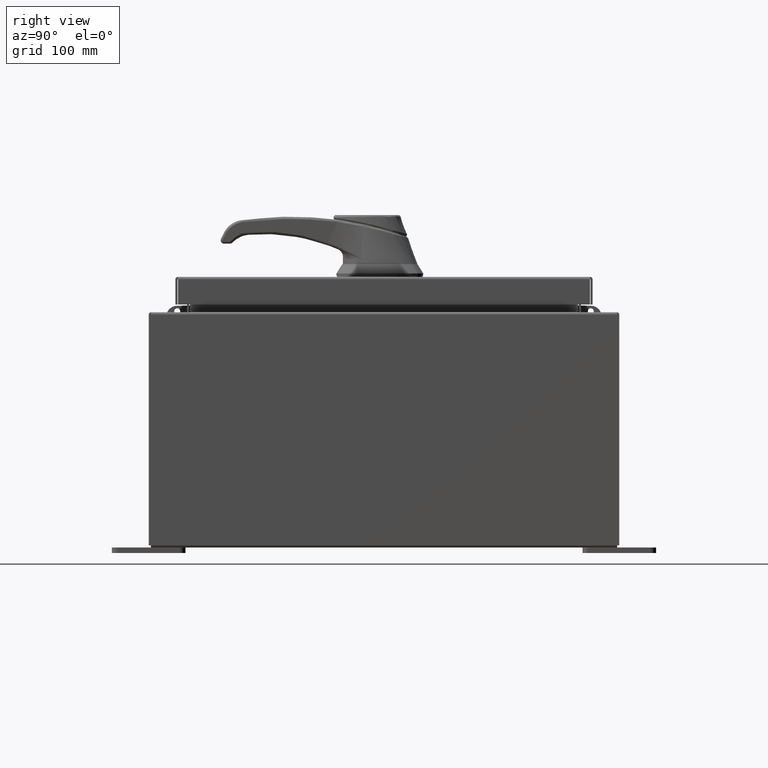
[diagram: clean part render]
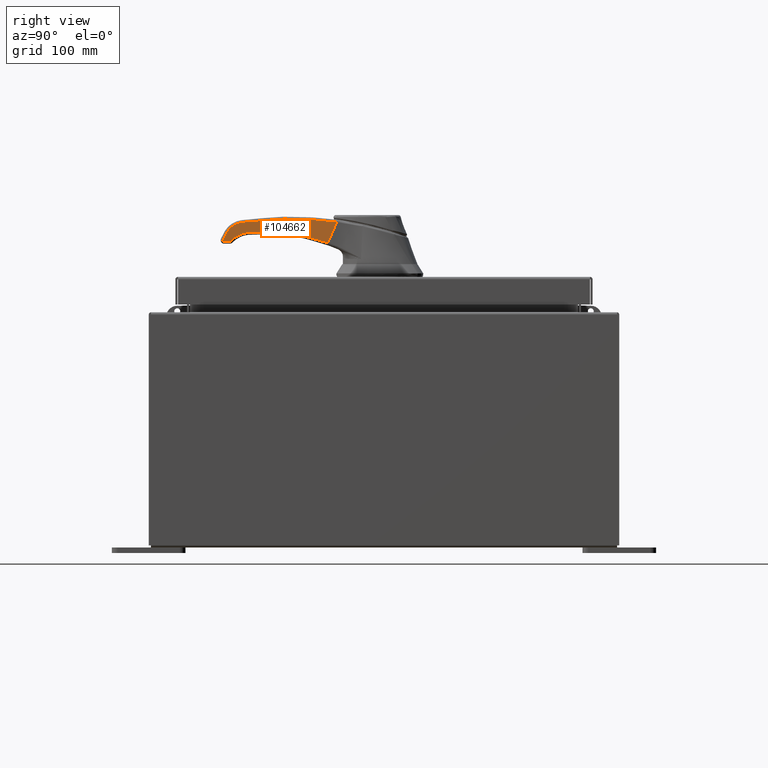
[diagram: same view with one face highlighted and labeled with its STEP entity id]
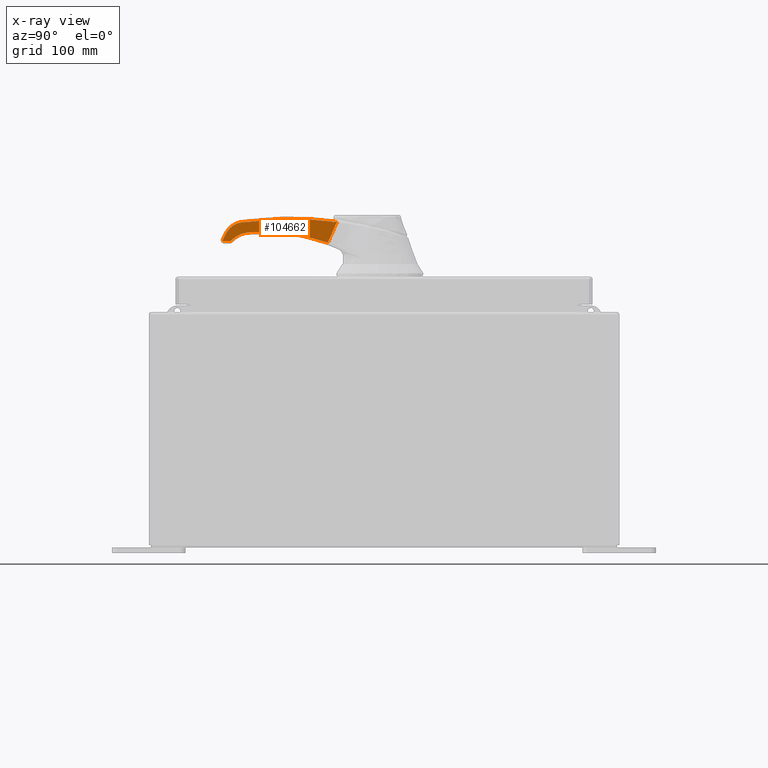
[diagram: x-ray of the same camera — body ghosted, the highlighted face saturated]
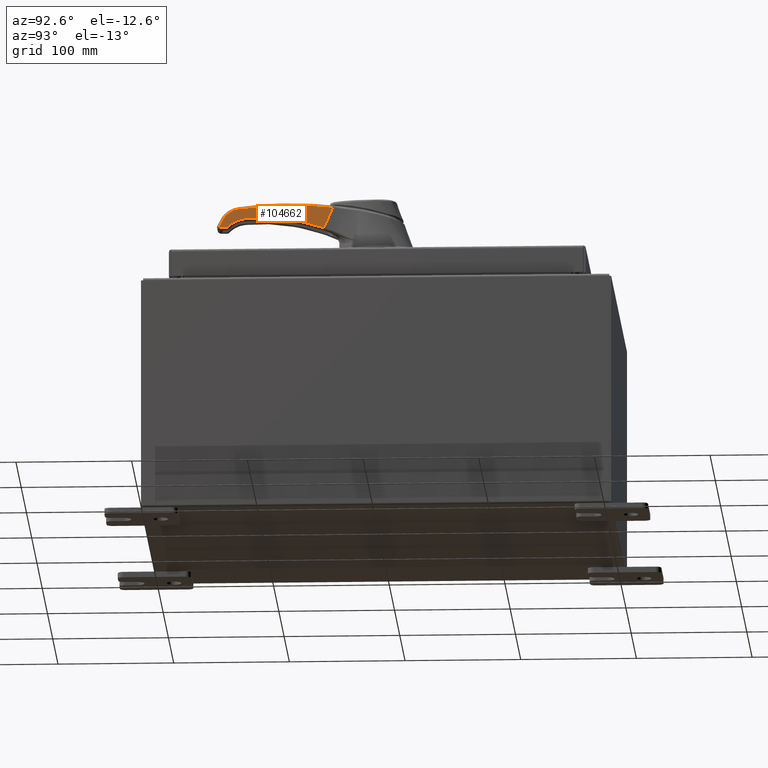
[diagram: same view with one face highlighted and labeled with its STEP entity id]
A machine part, right view. The second image highlights one B-rep face of the part: STEP entity #104662.
The next image is the same camera in x-ray: the body ghosted, the highlighted face saturated — about 0% of this face is hidden behind the body in this view.
A second angle (auxiliary view) of the same face is appended — the face is thin or edge-on in the first view.
In plain terms, the highlighted planar face has unit normal (-0.9997, 0.0262, 0).
Its self-contained STEP definition (entity closure, byte-faithful):
#530 = CARTESIAN_POINT ( 'NONE',  ( 4.260912669914371300, 0.3477165561024668800, 1.822155934299293700 ) ) ;
#1401 = CARTESIAN_POINT ( 'NONE',  ( 5.238341333922705600, 0.3221216857672756800, 1.504789192969850500 ) ) ;
#1747 = CARTESIAN_POINT ( 'NONE',  ( 1.709857820584053600, 0.4145182783057060900, 1.436171112129818800 ) ) ;
#2039 = CARTESIAN_POINT ( 'NONE',  ( 2.297279569877136200, 0.3991360984506870900, 1.209813579828441500 ) ) ;
#2108 = CARTESIAN_POINT ( 'NONE',  ( 1.562662322280712800, 0.4183727280796142900, 1.754100271247676300 ) ) ;
#5132 = CARTESIAN_POINT ( 'NONE',  ( 4.899618863864527700, 0.3309914458019374600, 1.314808457310636900 ) ) ;
#5502 = CARTESIAN_POINT ( 'NONE',  ( 5.188159560683404300, 0.3234357417455224800, 1.103479018449303500 ) ) ;
#8046 = CARTESIAN_POINT ( 'NONE',  ( 5.415589483345930200, 0.3174802796281969200, 1.107331244552982200 ) ) ;
#9629 = CARTESIAN_POINT ( 'NONE',  ( 5.166214422408489600, 0.3240103954152144800, 1.578167351356164700 ) ) ;
#10002 = CARTESIAN_POINT ( 'NONE',  ( 1.667824470721047000, 0.4156189603085088700, 1.530038901860349100 ) ) ;
#10131 = B_SPLINE_CURVE_WITH_KNOTS ( 'NONE', 3,
 ( #91098, #33948, #1401, #58627, #9629, #66845, #17882, #75026, #26103, #83257, #34309, #91453, #42534 ),
 .UNSPECIFIED., .F., .F.,
 ( 4, 3, 3, 3, 4 ),
 ( 0.0000000000000000000, 0.2500000000000000600, 0.4999999999999999400, 0.7500000000000001100, 1.000000000000000000 ),
 .UNSPECIFIED. ) ;
#11369 = ORIENTED_EDGE ( 'NONE', *, *, #81329, .F. ) ;
#11392 = CARTESIAN_POINT ( 'NONE',  ( 5.198911570732901700, 0.3231541904536550700, 1.102362204724409300 ) ) ;
#12539 = CARTESIAN_POINT ( 'NONE',  ( 5.435132043173849700, 0.3169685396892818500, 1.141732283464568000 ) ) ;
#12617 = CARTESIAN_POINT ( 'NONE',  ( 5.395761964433690500, 0.3179994814833435000, 1.102362204724409300 ) ) ;
#13334 = CARTESIAN_POINT ( 'NONE',  ( 4.998712605902774400, 0.3283965848449282300, 1.260755330484069100 ) ) ;
#13728 = CARTESIAN_POINT ( 'NONE',  ( 5.198911570732901700, 0.3231541904536550700, 1.102362204724409300 ) ) ;
#16299 = CARTESIAN_POINT ( 'NONE',  ( 5.423600814086704200, 0.3172704955497537800, 1.113893433811554700 ) ) ;
#17243 = CARTESIAN_POINT ( 'NONE',  ( 5.435132043173849700, 0.3169685396892818500, 1.146767822269909800 ) ) ;
#17364 = VERTEX_POINT ( 'NONE', #70582 ) ;
#17882 = CARTESIAN_POINT ( 'NONE',  ( 5.083002450597204500, 0.3261893775826813500, 1.638942742081526300 ) ) ;
#18246 = CARTESIAN_POINT ( 'NONE',  ( 1.650061589649088200, 0.4160840977191018200, 1.568781778993351800 ) ) ;
#18523 = CARTESIAN_POINT ( 'NONE',  ( 3.201373024673465300, 0.3754615781521820100, 1.376662373716617900 ) ) ;
#21174 = CARTESIAN_POINT ( 'NONE',  ( 0.01201875559651574900, 0.4589777588985599100, 0.0000000000000000000 ) ) ;
#21273 = CARTESIAN_POINT ( 'NONE',  ( 5.297676707349643800, 0.3205679343324399100, 1.420544348434245500 ) ) ;
#21610 = CARTESIAN_POINT ( 'NONE',  ( 5.089391488390961400, 0.3260220747401119100, 1.193731973241700200 ) ) ;
#24524 = CARTESIAN_POINT ( 'NONE',  ( 5.430163003345275500, 0.3170986585765062600, 1.121904764552327900 ) ) ;
#25231 = CARTESIAN_POINT ( 'NONE',  ( 3.720358019906724800, 0.3618714777714219800, 1.860878920996956500 ) ) ;
#25592 = B_SPLINE_CURVE_WITH_KNOTS ( 'NONE', 3,
 ( #70204, #102713, #53823, #21273 ),
 .UNSPECIFIED., .F., .F.,
 ( 4, 4 ),
 ( 0.0000000000000000000, 1.000000000000000000 ),
 .UNSPECIFIED. ) ;
#26103 = CARTESIAN_POINT ( 'NONE',  ( 4.993661853746122100, 0.3285288434447679600, 1.690286077820788000 ) ) ;
#26106 = CARTESIAN_POINT ( 'NONE',  ( 1.765521914500037600, 0.4130606627082026900, 1.306413550672592500 ) ) ;
#26454 = CARTESIAN_POINT ( 'NONE',  ( 1.645561960060808200, 0.4162019246665907800, 1.578529911083217800 ) ) ;
#26757 = CARTESIAN_POINT ( 'NONE',  ( 4.118201828877361400, 0.3514535709929325600, 1.444841834036825000 ) ) ;
#28260 = EDGE_CURVE ( 'NONE', #81547, #32939, #74810, .T. ) ;
#28843 = B_SPLINE_CURVE_WITH_KNOTS ( 'NONE', 3,
 ( #57765, #530, #25231, #82390, #33442, #90587, #41663 ),
 .UNSPECIFIED., .F., .F.,
 ( 4, 3, 4 ),
 ( 0.0000000000000000000, 0.5000000000000000000, 1.000000000000000000 ),
 .UNSPECIFIED. ) ;
#29816 = CARTESIAN_POINT ( 'NONE',  ( 5.170139892717847000, 0.3239076033575709600, 1.114858622675531500 ) ) ;
#29847 = CARTESIAN_POINT ( 'NONE',  ( 5.173810360600048100, 0.3238114887734851500, 1.110928919130475400 ) ) ;
#31617 = EDGE_CURVE ( 'NONE', #56411, #103130, #95825, .T. ) ;
#32713 = CARTESIAN_POINT ( 'NONE',  ( 5.434107345404883400, 0.3169953723446915500, 1.131427248647273200 ) ) ;
#32743 = EDGE_CURVE ( 'NONE', #32939, #45744, #61048, .T. ) ;
#32939 = VERTEX_POINT ( 'NONE', #61176 ) ;
#33442 = CARTESIAN_POINT ( 'NONE',  ( 2.639063204809394500, 0.3901861789927224000, 1.863463497511194300 ) ) ;
#33672 = CARTESIAN_POINT ( 'NONE',  ( 5.434154275272665500, 0.3169941434428555900, 1.151801554516132400 ) ) ;
#33948 = CARTESIAN_POINT ( 'NONE',  ( 5.270392524408691800, 0.3212823958070100700, 1.464158964498488700 ) ) ;
#34309 = CARTESIAN_POINT ( 'NONE',  ( 4.897309076118954600, 0.3310519297226854900, 1.726380228818923600 ) ) ;
#34312 = CARTESIAN_POINT ( 'NONE',  ( 1.733059943124017900, 0.4139107093446360900, 1.382706793541607100 ) ) ;
#34668 = CARTESIAN_POINT ( 'NONE',  ( 1.644487136552200700, 0.4162300699106880600, 1.580854585195165000 ) ) ;
#37313 = CARTESIAN_POINT ( 'NONE',  ( 4.631623080003707000, 0.3380091623789882000, 1.399778788881901500 ) ) ;
#37653 = ORIENTED_EDGE ( 'NONE', *, *, #85799, .F. ) ;
#38888 = CARTESIAN_POINT ( 'NONE',  ( 1.562662322280712800, 0.4183727280796142900, 1.754100271247676300 ) ) ;
#40428 = EDGE_CURVE ( 'NONE', #101172, #70335, #25592, .T. ) ;
#40595 = CARTESIAN_POINT ( 'NONE',  ( 5.395761964433690500, 0.3179994814833435000, 1.102362204724409300 ) ) ;
#40959 = CARTESIAN_POINT ( 'NONE',  ( 5.435132043173849700, 0.3169685396892818500, 1.141732283464568000 ) ) ;
#41238 = EDGE_CURVE ( 'NONE', #17364, #101948, #28843, .T. ) ;
#41663 = CARTESIAN_POINT ( 'NONE',  ( 1.562662322280712800, 0.4183727280796142900, 1.754100271247676300 ) ) ;
#42534 = CARTESIAN_POINT ( 'NONE',  ( 4.796223764405047200, 0.3336989417670212500, 1.746371229950547800 ) ) ;
#42538 = CARTESIAN_POINT ( 'NONE',  ( 1.725237457675101100, 0.4141155483350774100, 1.400794937004702100 ) ) ;
#42716 = EDGE_LOOP ( 'NONE', ( #86924, #95958, #86537, #37653, #49623, #11369, #46952, #102469, #44954, #73498 ) ) ;
#42885 = CARTESIAN_POINT ( 'NONE',  ( 1.644138283611094300, 0.4162392049464427900, 1.581608801553303900 ) ) ;
#44552 = EDGE_CURVE ( 'NONE', #53037, #81547, #60912, .T. ) ;
#44737 = CARTESIAN_POINT ( 'NONE',  ( 4.575459058248953600, 0.3394798690476684100, 1.404708311847427900 ) ) ;
#44954 = ORIENTED_EDGE ( 'NONE', *, *, #32743, .F. ) ;
#45744 = VERTEX_POINT ( 'NONE', #11392 ) ;
#45843 = PLANE ( 'NONE',  #69852 ) ;
#45901 = CARTESIAN_POINT ( 'NONE',  ( 4.741663103481488200, 0.3351276629547292300, 1.374629167336418200 ) ) ;
#46952 = ORIENTED_EDGE ( 'NONE', *, *, #31617, .F. ) ;
#47642 = CARTESIAN_POINT ( 'NONE',  ( 5.297676707349643800, 0.3205679343324399100, 1.420544348434245500 ) ) ;
#49623 = ORIENTED_EDGE ( 'NONE', *, *, #40428, .F. ) ;
#50398 = CARTESIAN_POINT ( 'NONE',  ( 1.865198265729528700, 0.4104505455926048500, 1.054892244880485200 ) ) ;
#50750 = CARTESIAN_POINT ( 'NONE',  ( 1.722863867013035600, 0.4141777029939918100, 1.406262940646887400 ) ) ;
#51123 = CARTESIAN_POINT ( 'NONE',  ( 1.596077613542665100, 0.4174977178834168900, 1.684288201835002900 ) ) ;
#51685 = CARTESIAN_POINT ( 'NONE',  ( 0.01201875559651574900, 0.4589777588985544100, 1.102362204724409300 ) ) ;
#52701 = LINE ( 'NONE', #51685, #74407 ) ;
#53037 = VERTEX_POINT ( 'NONE', #72312 ) ;
#53783 = CARTESIAN_POINT ( 'NONE',  ( 4.687333780091353000, 0.3365503263559293500, 1.389696421774641700 ) ) ;
#53823 = CARTESIAN_POINT ( 'NONE',  ( 5.350141432284226000, 0.3191940971601549500, 1.336677851867712900 ) ) ;
#54066 = DIRECTION ( 'NONE',  ( 0.9996573249755573700, -0.02617694830786630700, 2.958228394578794300E-031 ) ) ;
#54125 = CARTESIAN_POINT ( 'NONE',  ( 4.848938346337686100, 0.3323185618589824500, 1.339510333343593800 ) ) ;
#54510 = CARTESIAN_POINT ( 'NONE',  ( 5.183227423342853700, 0.3235648943070900700, 1.105621196238433900 ) ) ;
#55994 = CARTESIAN_POINT ( 'NONE',  ( 5.400915495689577700, 0.3178645315180727000, 1.102362204724410800 ) ) ;
#56411 = VERTEX_POINT ( 'NONE', #12617 ) ;
#57026 = CARTESIAN_POINT ( 'NONE',  ( 5.410828241298456300, 0.3176049571390233100, 1.105359073523178200 ) ) ;
#57765 = CARTESIAN_POINT ( 'NONE',  ( 4.796223764405047200, 0.3336989417670212500, 1.746371229950547800 ) ) ;
#58627 = CARTESIAN_POINT ( 'NONE',  ( 5.202277878165597600, 0.3230660405912456100, 1.541478272163007600 ) ) ;
#58988 = CARTESIAN_POINT ( 'NONE',  ( 1.690921837139421900, 0.4150141344830225500, 1.479003086513330300 ) ) ;
#59277 = CARTESIAN_POINT ( 'NONE',  ( 1.865198265729528700, 0.4104505455926048500, 1.054892244880485200 ) ) ;
#60912 = B_SPLINE_CURVE_WITH_KNOTS ( 'NONE', 3,
 ( #59277, #2039, #67486, #18523, #75687, #26757, #83887 ),
 .UNSPECIFIED., .F., .F.,
 ( 4, 3, 4 ),
 ( 0.0000000000000000000, 0.5000000000000000000, 1.000000000000000000 ),
 .UNSPECIFIED. ) ;
#61048 = B_SPLINE_CURVE_WITH_KNOTS ( 'NONE', 3,
 ( #103071, #29847, #103445, #54510, #5502, #62734, #13728 ),
 .UNSPECIFIED., .F., .F.,
 ( 4, 3, 4 ),
 ( 0.0000000000000000000, 0.5000000000000002200, 1.000000000000000000 ),
 .UNSPECIFIED. ) ;
#61176 = CARTESIAN_POINT ( 'NONE',  ( 5.170139892717847000, 0.3239076033575709600, 1.114858622675531500 ) ) ;
#62329 = CARTESIAN_POINT ( 'NONE',  ( 4.950299381391370300, 0.3296643297448946200, 1.290106581277679100 ) ) ;
#62734 = CARTESIAN_POINT ( 'NONE',  ( 5.193534312655935500, 0.3232949989119156000, 1.102362204724409300 ) ) ;
#65283 = CARTESIAN_POINT ( 'NONE',  ( 5.419956717188608100, 0.3173659195853179000, 1.110249336913458700 ) ) ;
#66608 = CARTESIAN_POINT ( 'NONE',  ( 5.432269163649482200, 0.3170435068279696100, 1.156470923341599100 ) ) ;
#66845 = CARTESIAN_POINT ( 'NONE',  ( 5.126141399689135600, 0.3250597444451833700, 1.610912536152378600 ) ) ;
#66849 = FACE_OUTER_BOUND ( 'NONE', #42716, .T. ) ;
#67182 = CARTESIAN_POINT ( 'NONE',  ( 1.656024441078615100, 0.4159279549592395100, 1.555823104175422700 ) ) ;
#67486 = CARTESIAN_POINT ( 'NONE',  ( 2.746134234436860200, 0.3873824254085659900, 1.317904248492759000 ) ) ;
#69111 = EDGE_CURVE ( 'NONE', #53037, #101948, #86241, .T. ) ;
#69852 = AXIS2_PLACEMENT_3D ( 'NONE', #21174, #102971, #54066 ) ;
#70204 = CARTESIAN_POINT ( 'NONE',  ( 5.432269163649482200, 0.3170435068279696100, 1.156470923341599100 ) ) ;
#70335 = VERTEX_POINT ( 'NONE', #47642 ) ;
#70515 = CARTESIAN_POINT ( 'NONE',  ( 5.044052047146868400, 0.3272093297925201000, 1.227243651862884400 ) ) ;
#70582 = CARTESIAN_POINT ( 'NONE',  ( 4.796223764405047200, 0.3336989417670212500, 1.746371229950547800 ) ) ;
#72312 = CARTESIAN_POINT ( 'NONE',  ( 1.865198265729528700, 0.4104505455926048500, 1.054892244880485200 ) ) ;
#73429 = CARTESIAN_POINT ( 'NONE',  ( 5.427244910984801300, 0.3171750715141894400, 1.117537530709650500 ) ) ;
#73498 = ORIENTED_EDGE ( 'NONE', *, *, #28260, .F. ) ;
#74408 = CARTESIAN_POINT ( 'NONE',  ( 5.435132043173849700, 0.3169685396892818500, 1.141732283464568000 ) ) ;
#74407 = VECTOR ( 'NONE', #100612, 39.37007874015748100 ) ;
#74672 = CARTESIAN_POINT ( 'NONE',  ( 1.842632749135867200, 0.4110414444402948900, 1.114804430378746800 ) ) ;
#74810 = B_SPLINE_CURVE_WITH_KNOTS ( 'NONE', 3,
 ( #94842, #37313, #53783, #45901, #103037, #54125, #5132, #62329, #13334, #70515, #21610, #78758, #29816 ),
 .UNSPECIFIED., .F., .F.,
 ( 4, 3, 3, 3, 4 ),
 ( 0.0000000000000000000, 0.2500000000000000600, 0.5000000000000001100, 0.7500000000000001100, 1.000000000000000000 ),
 .UNSPECIFIED. ) ;
#75026 = CARTESIAN_POINT ( 'NONE',  ( 5.039863501505275100, 0.3273190107201804400, 1.666972948010674100 ) ) ;
#75029 = CARTESIAN_POINT ( 'NONE',  ( 1.807821179219385200, 0.4119530174798277100, 1.203879819323980100 ) ) ;
#75392 = CARTESIAN_POINT ( 'NONE',  ( 1.647064454782247500, 0.4161625804576570800, 1.575277759817413500 ) ) ;
#75687 = CARTESIAN_POINT ( 'NONE',  ( 3.656611814910071700, 0.3635407308957969700, 1.435420498940477700 ) ) ;
#78758 = CARTESIAN_POINT ( 'NONE',  ( 5.131655454586693000, 0.3249153538361078100, 1.156061117236733000 ) ) ;
#81329 = EDGE_CURVE ( 'NONE', #103130, #101172, #96698, .T. ) ;
#81547 = VERTEX_POINT ( 'NONE', #44737 ) ;
#81677 = CARTESIAN_POINT ( 'NONE',  ( 5.432135174375079400, 0.3170470154605994400, 1.126666006599800900 ) ) ;
#82390 = CARTESIAN_POINT ( 'NONE',  ( 3.179710612358059900, 0.3760288283820727400, 1.862171209254075000 ) ) ;
#83257 = CARTESIAN_POINT ( 'NONE',  ( 4.945485464932538400, 0.3297903865837267200, 1.708333153319856500 ) ) ;
#83259 = CARTESIAN_POINT ( 'NONE',  ( 1.743950840519501400, 0.4136255211596200900, 1.357333527408359100 ) ) ;
#83587 = EDGE_CURVE ( 'NONE', #45744, #56411, #52701, .T. ) ;
#83600 = CARTESIAN_POINT ( 'NONE',  ( 1.644809730878084000, 0.4162216224809715500, 1.580157026929564400 ) ) ;
#83887 = CARTESIAN_POINT ( 'NONE',  ( 4.575459058248953600, 0.3394798690476684100, 1.404708311847427900 ) ) ;
#85799 = EDGE_CURVE ( 'NONE', #70335, #17364, #10131, .T. ) ;
#86241 = B_SPLINE_CURVE_WITH_KNOTS ( 'NONE', 3,
 ( #50398, #74672, #75029, #26106, #83259, #34312, #91455, #42538, #99697, #50750, #1747, #58988, #10002, #67182, #18246, #75392, #26454, #83600, #34668, #91816, #42885, #100048, #51123, #2108 ),
 .UNSPECIFIED., .F., .F.,
 ( 4, 1, 1, 1, 1, 1, 2, 2, 1, 1, 1, 1, 1, 1, 1, 2, 2, 4 ),
 ( 0.0000000000000000000, 0.2499999999999748000, 0.3749999999999619700, 0.4374999999999558700, 0.4687499999999528200, 0.4843749999999512600, 0.4921874999999504800, 0.4999999999999497100, 0.6249999999999330500, 0.6874999999999248400, 0.7187499999999207300, 0.7343749999999185100, 0.7421874999999171800, 0.7460937499999170700, 0.7480468749999167300, 0.7490234374999162900, 0.7499999999999158500, 1.000000000000000000 ),
 .UNSPECIFIED. ) ;
#86537 = ORIENTED_EDGE ( 'NONE', *, *, #41238, .F. ) ;
#86924 = ORIENTED_EDGE ( 'NONE', *, *, #44552, .F. ) ;
#89899 = CARTESIAN_POINT ( 'NONE',  ( 5.435132043173849700, 0.3169685396892818500, 1.136578752208679400 ) ) ;
#90587 = CARTESIAN_POINT ( 'NONE',  ( 2.098329616508388900, 0.4043457863257936000, 1.827325071607532400 ) ) ;
#90825 = CARTESIAN_POINT ( 'NONE',  ( 5.432269163649482200, 0.3170435068279696100, 1.156470923341599100 ) ) ;
#91098 = CARTESIAN_POINT ( 'NONE',  ( 5.297676707349643800, 0.3205679343324399100, 1.420544348434245500 ) ) ;
#91453 = CARTESIAN_POINT ( 'NONE',  ( 4.847161550863279300, 0.3323650888859183700, 1.739159899704178600 ) ) ;
#91455 = CARTESIAN_POINT ( 'NONE',  ( 1.727588154324971100, 0.4140539931769710600, 1.395371746049572700 ) ) ;
#91816 = CARTESIAN_POINT ( 'NONE',  ( 1.644272026914849200, 0.4162357027547805000, 1.581319673572872300 ) ) ;
#94842 = CARTESIAN_POINT ( 'NONE',  ( 4.575459058248953600, 0.3394798690476684100, 1.404708311847427900 ) ) ;
#95825 = B_SPLINE_CURVE_WITH_KNOTS ( 'NONE', 3,
 ( #40595, #55994, #105962, #57026, #8046, #65283, #16299, #73429, #24524, #81677, #32713, #89899, #40959 ),
 .UNSPECIFIED., .F., .F.,
 ( 4, 3, 3, 3, 4 ),
 ( 0.0000000000000000000, 0.2500000000000002800, 0.5000000000000000000, 0.7499999999999996700, 1.000000000000000000 ),
 .UNSPECIFIED. ) ;
#95958 = ORIENTED_EDGE ( 'NONE', *, *, #69111, .T. ) ;
#96698 = B_SPLINE_CURVE_WITH_KNOTS ( 'NONE', 3,
 ( #74408, #17243, #33672, #90825 ),
 .UNSPECIFIED., .F., .F.,
 ( 4, 4 ),
 ( 0.0000000000000000000, 1.000000000000000000 ),
 .UNSPECIFIED. ) ;
#99697 = CARTESIAN_POINT ( 'NONE',  ( 1.723669072284648600, 0.4141566179519021700, 1.404409365233900300 ) ) ;
#100048 = CARTESIAN_POINT ( 'NONE',  ( 1.623209112430039400, 0.4167872545814977900, 1.626849718999865400 ) ) ;
#100612 = DIRECTION ( 'NONE',  ( 0.9996573249755573700, -0.02617694830786630700, 2.958228394578794300E-031 ) ) ;
#101172 = VERTEX_POINT ( 'NONE', #66608 ) ;
#101948 = VERTEX_POINT ( 'NONE', #38888 ) ;
#102469 = ORIENTED_EDGE ( 'NONE', *, *, #83587, .F. ) ;
#102713 = CARTESIAN_POINT ( 'NONE',  ( 5.395235492905134000, 0.3180132676254992000, 1.248202291150026800 ) ) ;
#102971 = DIRECTION ( 'NONE',  ( -0.02617694830786631100, -0.9996573249755574800, 0.0000000000000000000 ) ) ;
#103037 = CARTESIAN_POINT ( 'NONE',  ( 4.795992426871623400, 0.3337049995535279500, 1.359561912898191700 ) ) ;
#103071 = CARTESIAN_POINT ( 'NONE',  ( 5.170139892717847000, 0.3239076033575709600, 1.114858622675531500 ) ) ;
#103130 = VERTEX_POINT ( 'NONE', #12539 ) ;
#103445 = CARTESIAN_POINT ( 'NONE',  ( 5.178295286002300400, 0.3236940468686587100, 1.107763374027564300 ) ) ;
#104662 = ADVANCED_FACE ( 'NONE', ( #66849 ), #45843, .F. ) ;
#105962 = CARTESIAN_POINT ( 'NONE',  ( 5.406066999250983300, 0.3177296346498508200, 1.103386902493374700 ) ) ;